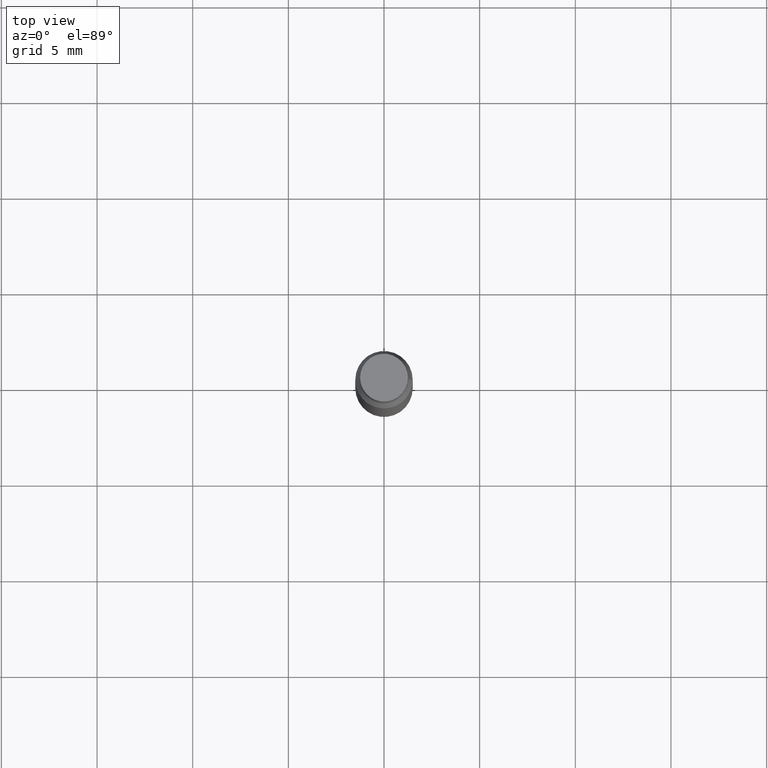
[diagram: clean part render]
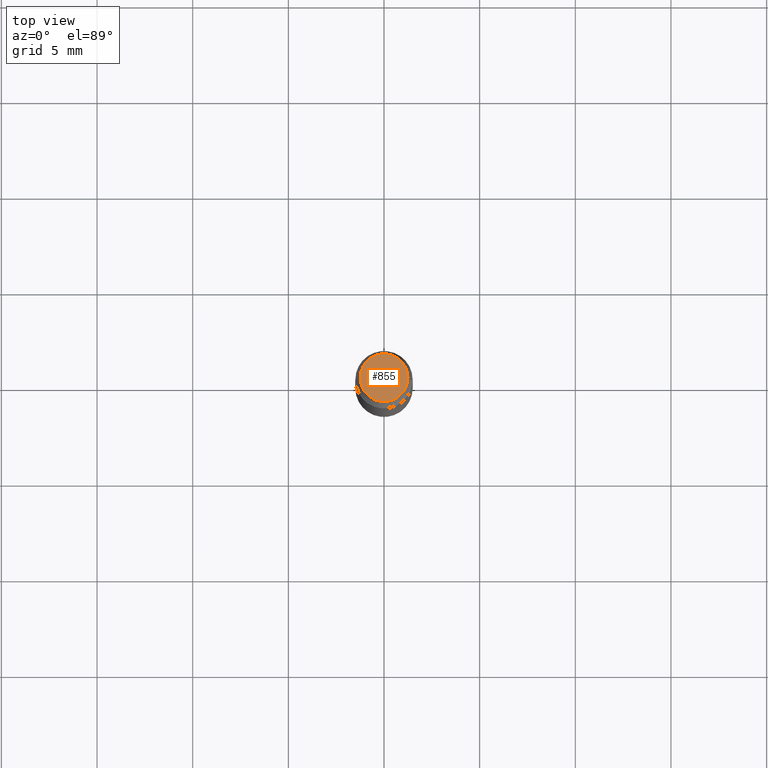
[diagram: same view with one face highlighted and labeled with its STEP entity id]
A machine part, top view. The second image highlights one B-rep face of the part: STEP entity #855.
In plain terms, the highlighted planar face has unit normal (-0, -0, -1).
Its self-contained STEP definition (entity closure, byte-faithful):
#4 = CARTESIAN_POINT ( 'NONE',  ( 0.04920000000000000068, -3.433195779781105028E-16, 1.112302229232114997E-34 ) ) ;
#9 = AXIS2_PLACEMENT_3D ( 'NONE', #246, #718, #705 ) ;
#20 = AXIS2_PLACEMENT_3D ( 'NONE', #571, #410, #35 ) ;
#32 = PLANE ( 'NONE',  #9 ) ;
#35 = DIRECTION ( 'NONE',  ( 1.000000000000000000, -6.982962677686266711E-15, 2.260776888683160490E-33 ) ) ;
#163 = VERTEX_POINT ( 'NONE', #4 ) ;
#190 = CIRCLE ( 'NONE', #20, 0.04920000000000000068 ) ;
#194 = ORIENTED_EDGE ( 'NONE', *, *, #935, .T. ) ;
#246 = CARTESIAN_POINT ( 'NONE',  ( 3.511898583110818647E-29, -2.099369381939656466E-16, 0.000000000000000000 ) ) ;
#256 = AXIS2_PLACEMENT_3D ( 'NONE', #947, #327, #416 ) ;
#327 = DIRECTION ( 'NONE',  ( 2.445468806185136597E-29, 3.491805094961124077E-15, 1.000000000000000000 ) ) ;
#410 = DIRECTION ( 'NONE',  ( 2.445468806185136597E-29, 3.491805094961124077E-15, 1.000000000000000000 ) ) ;
#416 = DIRECTION ( 'NONE',  ( 1.000000000000000000, -6.982962677686266711E-15, 2.260776888683160490E-33 ) ) ;
#442 = EDGE_LOOP ( 'NONE', ( #588, #194 ) ) ;
#571 = CARTESIAN_POINT ( 'NONE',  ( 3.658665880933582389E-29, 2.421857640538043390E-19, 0.000000000000000000 ) ) ;
#588 = ORIENTED_EDGE ( 'NONE', *, *, #901, .T. ) ;
#688 = CIRCLE ( 'NONE', #256, 0.04920000000000000068 ) ;
#705 = DIRECTION ( 'NONE',  ( 1.000000000000000000, -6.982962677686265922E-15, 2.260776888683160832E-33 ) ) ;
#715 = FACE_OUTER_BOUND ( 'NONE', #442, .T. ) ;
#717 = VERTEX_POINT ( 'NONE', #853 ) ;
#718 = DIRECTION ( 'NONE',  ( -2.438088387897959208E-29, -3.491805094961123683E-15, -1.000000000000000000 ) ) ;
#853 = CARTESIAN_POINT ( 'NONE',  ( -0.04920000000000000068, -5.989524344509276303E-18, 1.224930569750488453E-30 ) ) ;
#855 = ADVANCED_FACE ( 'NONE', ( #715 ), #32, .F. ) ;
#901 = EDGE_CURVE ( 'NONE', #163, #717, #688, .T. ) ;
#935 = EDGE_CURVE ( 'NONE', #717, #163, #190, .T. ) ;
#947 = CARTESIAN_POINT ( 'NONE',  ( 3.658665880933582389E-29, 2.421857640538043390E-19, 0.000000000000000000 ) ) ;